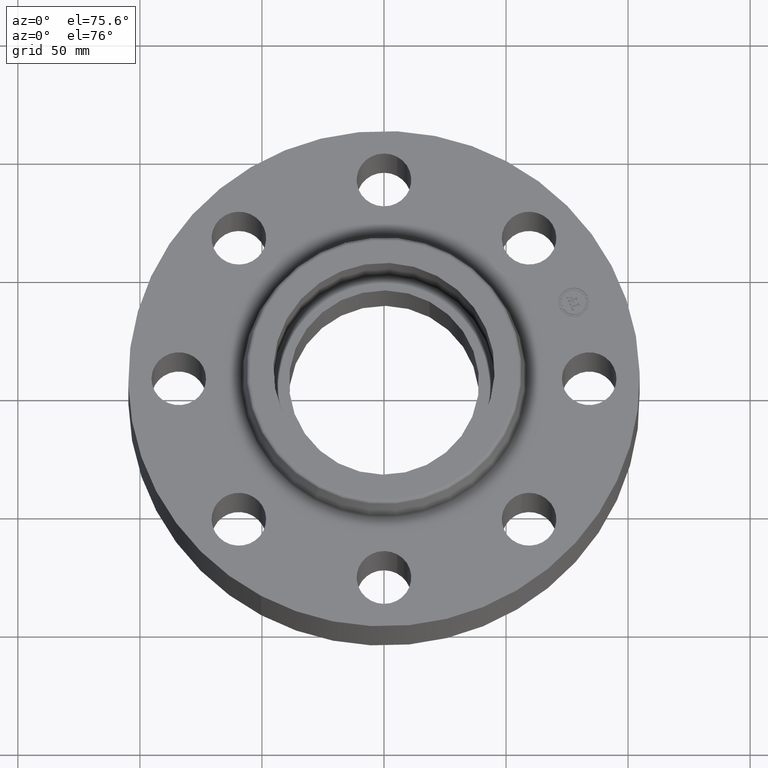
[diagram: clean part render]
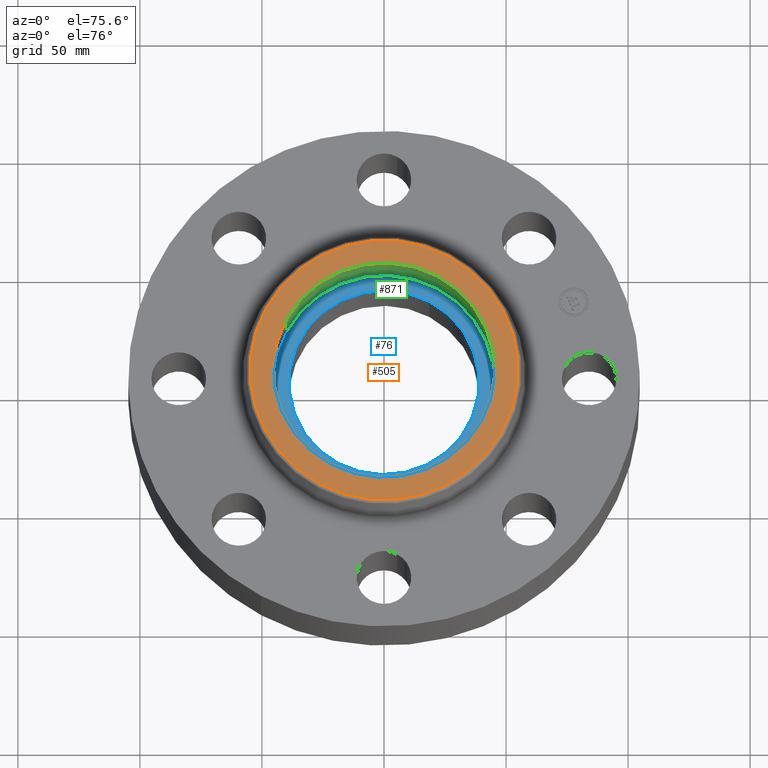
[diagram: same view with three faces highlighted in distinct colors, each labeled with its STEP entity id]
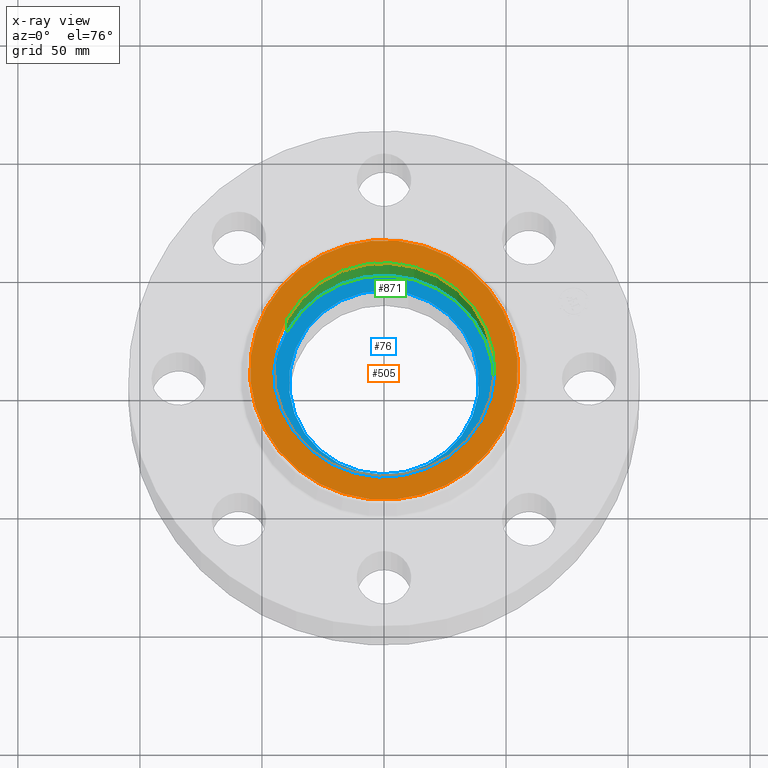
[diagram: x-ray of the same camera — body ghosted, the three highlighted faces saturated]
A machine part, auxiliary view with three faces highlighted in distinct colors.
The next image is the same camera in x-ray (body ghosted, the three faces saturated) — at least one of them is partly hidden behind the body in this view.
Their STEP definitions:

[orange] entity #505 — the highlighted planar face has unit normal (0, 0, -1).
#449=AXIS2_PLACEMENT_3D('Circle Axis2P3D',#447,#448,$) ;
#468=AXIS2_PLACEMENT_3D('Circle Axis2P3D',#466,#467,$) ;
#481=AXIS2_PLACEMENT_3D('Plane Axis2P3D',#478,#479,#480) ;
#489=AXIS2_PLACEMENT_3D('Circle Axis2P3D',#487,#488,$) ;
#498=AXIS2_PLACEMENT_3D('Circle Axis2P3D',#496,#497,$) ;
#444=CARTESIAN_POINT('Vertex',(1.03599587831,1.896377735,1.81000000001)) ;
#447=CARTESIAN_POINT('Axis2P3D Location',(0.,0.,1.81000000001)) ;
#451=CARTESIAN_POINT('Vertex',(-1.03599587831,-1.896377735,1.81000000001)) ;
#466=CARTESIAN_POINT('Axis2P3D Location',(0.,0.,1.81000000001)) ;
#478=CARTESIAN_POINT('Axis2P3D Location',(0.,2.16091091294,1.81000000001)) ;
#487=CARTESIAN_POINT('Axis2P3D Location',(2.09805925913E-016,-5.59482469102E-016,1.81000000001)) ;
#491=CARTESIAN_POINT('Vertex',(-1.56648487298,0.855774586412,1.81000000001)) ;
#493=CARTESIAN_POINT('Vertex',(1.56648487298,-0.855774586412,1.81000000001)) ;
#496=CARTESIAN_POINT('Axis2P3D Location',(1.39870617276E-016,0.,1.81000000001)) ;
#448=DIRECTION('Axis2P3D Direction',(0.,0.,-0.0393700787402)) ;
#467=DIRECTION('Axis2P3D Direction',(0.,0.,-0.0393700787402)) ;
#479=DIRECTION('Axis2P3D Direction',(0.,0.,-0.0393700787402)) ;
#480=DIRECTION('Axis2P3D XDirection',(0.0393700787402,0.,0.)) ;
#488=DIRECTION('Axis2P3D Direction',(0.,0.,-0.0393700787402)) ;
#497=DIRECTION('Axis2P3D Direction',(0.,0.,-0.0393700787402)) ;
#484=ORIENTED_EDGE('',*,*,#453,.F.) ;
#485=ORIENTED_EDGE('',*,*,#470,.F.) ;
#502=ORIENTED_EDGE('',*,*,#495,.T.) ;
#503=ORIENTED_EDGE('',*,*,#500,.T.) ;
#504=FACE_BOUND('',#501,.T.) ;
#505=ADVANCED_FACE('PartBody',(#486,#504),#482,.F.) ;
#450=CIRCLE('generated circle',#449,2.16091091294) ;
#469=CIRCLE('generated circle',#468,2.16091091294) ;
#490=CIRCLE('generated circle',#489,1.78500000001) ;
#499=CIRCLE('generated circle',#498,1.78500000001) ;
#453=EDGE_CURVE('',#445,#452,#450,.T.) ;
#470=EDGE_CURVE('',#452,#445,#469,.T.) ;
#495=EDGE_CURVE('',#492,#494,#490,.T.) ;
#500=EDGE_CURVE('',#494,#492,#499,.T.) ;
#483=EDGE_LOOP('',(#484,#485)) ;
#501=EDGE_LOOP('',(#502,#503)) ;
#486=FACE_OUTER_BOUND('',#483,.T.) ;
#482=PLANE('',#481) ;
#445=VERTEX_POINT('',#444) ;
#452=VERTEX_POINT('',#451) ;
#492=VERTEX_POINT('',#491) ;
#494=VERTEX_POINT('',#493) ;

[blue] entity #76 — the highlighted planar face has unit normal (0, 0, -1).
#38=AXIS2_PLACEMENT_3D('Plane Axis2P3D',#35,#36,#37) ;
#42=AXIS2_PLACEMENT_3D('Circle Axis2P3D',#40,#41,$) ;
#51=AXIS2_PLACEMENT_3D('Circle Axis2P3D',#49,#50,$) ;
#60=AXIS2_PLACEMENT_3D('Circle Axis2P3D',#58,#59,$) ;
#69=AXIS2_PLACEMENT_3D('Circle Axis2P3D',#67,#68,$) ;
#35=CARTESIAN_POINT('Axis2P3D Location',(0.,-6.99353086378E-017,1.)) ;
#40=CARTESIAN_POINT('Axis2P3D Location',(0.,-6.99353086378E-017,1.)) ;
#44=CARTESIAN_POINT('Vertex',(-1.56648487298,0.855774586412,1.)) ;
#46=CARTESIAN_POINT('Vertex',(1.56648487298,-0.855774586412,1.)) ;
#49=CARTESIAN_POINT('Axis2P3D Location',(0.,-6.99353086378E-017,1.)) ;
#58=CARTESIAN_POINT('Axis2P3D Location',(2.79741234551E-016,3.49676543189E-017,1.)) ;
#62=CARTESIAN_POINT('Vertex',(0.735438776222,1.34621164995,1.)) ;
#64=CARTESIAN_POINT('Vertex',(-0.735438776222,-1.34621164995,1.)) ;
#67=CARTESIAN_POINT('Axis2P3D Location',(-4.19611851827E-016,-1.74838271595E-016,1.)) ;
#36=DIRECTION('Axis2P3D Direction',(0.,0.,-0.0393700787402)) ;
#37=DIRECTION('Axis2P3D XDirection',(0.0393700787402,0.,0.)) ;
#41=DIRECTION('Axis2P3D Direction',(0.,0.,-0.0393700787402)) ;
#50=DIRECTION('Axis2P3D Direction',(0.,0.,-0.0393700787402)) ;
#59=DIRECTION('Axis2P3D Direction',(0.,0.,-0.0393700787402)) ;
#68=DIRECTION('Axis2P3D Direction',(0.,0.,-0.0393700787402)) ;
#55=ORIENTED_EDGE('',*,*,#48,.F.) ;
#56=ORIENTED_EDGE('',*,*,#53,.F.) ;
#73=ORIENTED_EDGE('',*,*,#66,.T.) ;
#74=ORIENTED_EDGE('',*,*,#71,.T.) ;
#75=FACE_BOUND('',#72,.T.) ;
#76=ADVANCED_FACE('PartBody',(#57,#75),#39,.F.) ;
#43=CIRCLE('generated circle',#42,1.78500000001) ;
#52=CIRCLE('generated circle',#51,1.78500000001) ;
#61=CIRCLE('generated circle',#60,1.53400000001) ;
#70=CIRCLE('generated circle',#69,1.53400000001) ;
#48=EDGE_CURVE('',#45,#47,#43,.T.) ;
#53=EDGE_CURVE('',#47,#45,#52,.T.) ;
#66=EDGE_CURVE('',#63,#65,#61,.T.) ;
#71=EDGE_CURVE('',#65,#63,#70,.T.) ;
#54=EDGE_LOOP('',(#55,#56)) ;
#72=EDGE_LOOP('',(#73,#74)) ;
#57=FACE_OUTER_BOUND('',#54,.T.) ;
#39=PLANE('',#38) ;
#45=VERTEX_POINT('',#44) ;
#47=VERTEX_POINT('',#46) ;
#63=VERTEX_POINT('',#62) ;
#65=VERTEX_POINT('',#64) ;

[green] entity #871 — the highlighted cylindrical surface (partial cylindrical patch) has radius 45.339 mm, axis along (0, 0, -1).
#42=AXIS2_PLACEMENT_3D('Circle Axis2P3D',#40,#41,$) ;
#489=AXIS2_PLACEMENT_3D('Circle Axis2P3D',#487,#488,$) ;
#853=AXIS2_PLACEMENT_3D('Cylinder Axis2P3D',#850,#851,#852) ;
#40=CARTESIAN_POINT('Axis2P3D Location',(0.,-6.99353086378E-017,1.)) ;
#44=CARTESIAN_POINT('Vertex',(-1.56648487298,0.855774586412,1.)) ;
#46=CARTESIAN_POINT('Vertex',(1.56648487298,-0.855774586412,1.)) ;
#487=CARTESIAN_POINT('Axis2P3D Location',(2.09805925913E-016,-5.59482469102E-016,1.81000000001)) ;
#491=CARTESIAN_POINT('Vertex',(-1.56648487298,0.855774586412,1.81000000001)) ;
#493=CARTESIAN_POINT('Vertex',(1.56648487298,-0.855774586412,1.81000000001)) ;
#850=CARTESIAN_POINT('Axis2P3D Location',(0.,-6.99353086378E-017,1.80606299213)) ;
#855=CARTESIAN_POINT('Line Origine',(-1.56648487298,0.855774586412,1.40500000001)) ;
#860=CARTESIAN_POINT('Line Origine',(1.56648487298,-0.855774586412,1.40500000001)) ;
#41=DIRECTION('Axis2P3D Direction',(0.,0.,-0.0393700787402)) ;
#488=DIRECTION('Axis2P3D Direction',(0.,0.,-0.0393700787402)) ;
#851=DIRECTION('Axis2P3D Direction',(0.,0.,-0.0393700787402)) ;
#852=DIRECTION('Axis2P3D XDirection',(0.0345504945626,-0.0188750212049,0.)) ;
#856=DIRECTION('Vector Direction',(0.,0.,-0.0393700787402)) ;
#861=DIRECTION('Vector Direction',(0.,0.,-0.0393700787402)) ;
#857=VECTOR('Line Direction',#856,0.0393700787402) ;
#862=VECTOR('Line Direction',#861,0.0393700787402) ;
#866=ORIENTED_EDGE('',*,*,#495,.F.) ;
#867=ORIENTED_EDGE('',*,*,#859,.F.) ;
#868=ORIENTED_EDGE('',*,*,#48,.T.) ;
#869=ORIENTED_EDGE('',*,*,#864,.T.) ;
#871=ADVANCED_FACE('PartBody',(#870),#854,.F.) ;
#43=CIRCLE('generated circle',#42,1.78500000001) ;
#490=CIRCLE('generated circle',#489,1.78500000001) ;
#854=CYLINDRICAL_SURFACE('generated cylinder',#853,1.78500000001) ;
#48=EDGE_CURVE('',#45,#47,#43,.T.) ;
#495=EDGE_CURVE('',#492,#494,#490,.T.) ;
#859=EDGE_CURVE('',#45,#492,#858,.F.) ;
#864=EDGE_CURVE('',#47,#494,#863,.F.) ;
#865=EDGE_LOOP('',(#866,#867,#868,#869)) ;
#870=FACE_OUTER_BOUND('',#865,.T.) ;
#858=LINE('Line',#855,#857) ;
#863=LINE('Line',#860,#862) ;
#45=VERTEX_POINT('',#44) ;
#47=VERTEX_POINT('',#46) ;
#492=VERTEX_POINT('',#491) ;
#494=VERTEX_POINT('',#493) ;